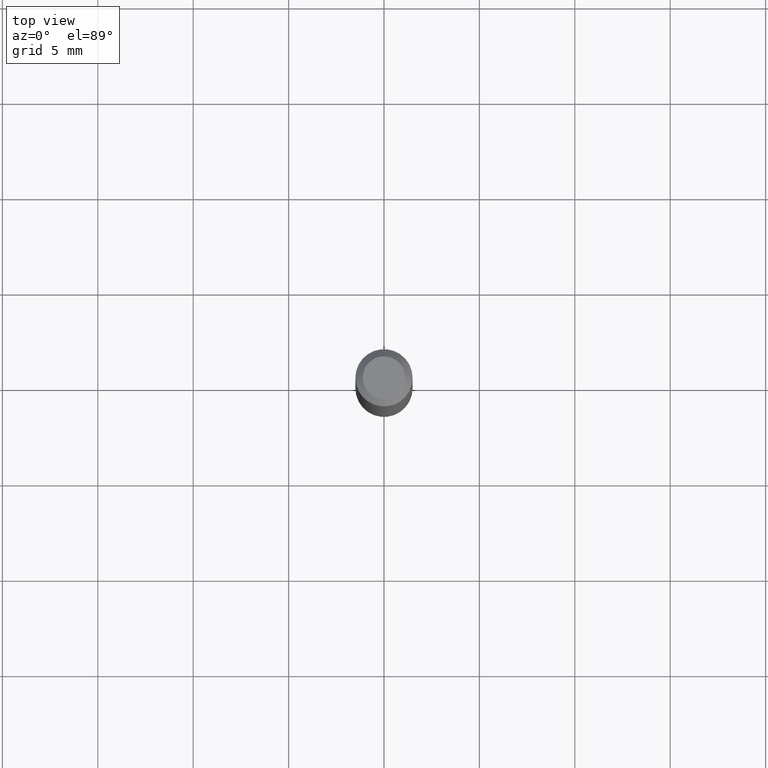
[diagram: clean part render]
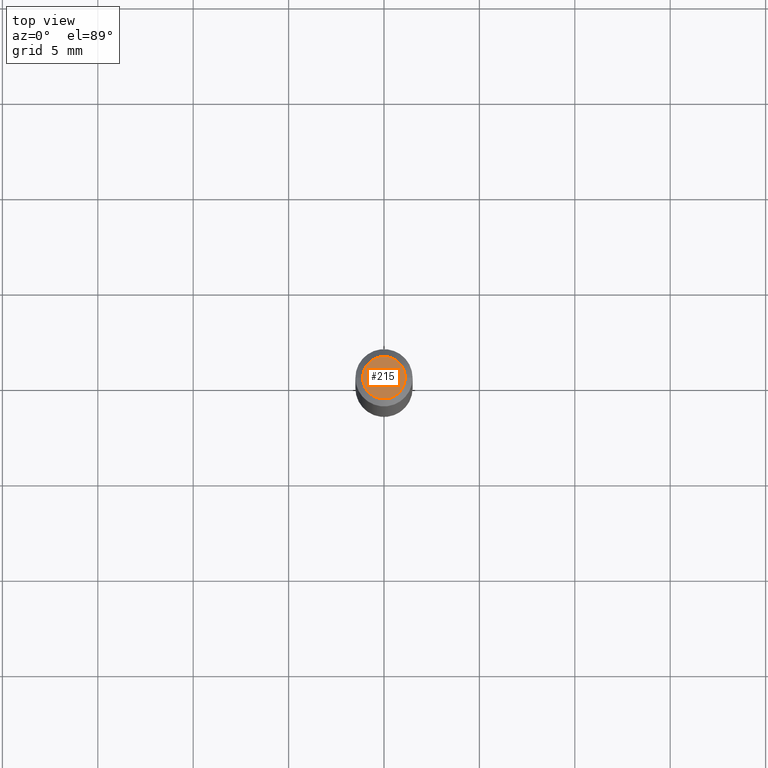
[diagram: same view with one face highlighted and labeled with its STEP entity id]
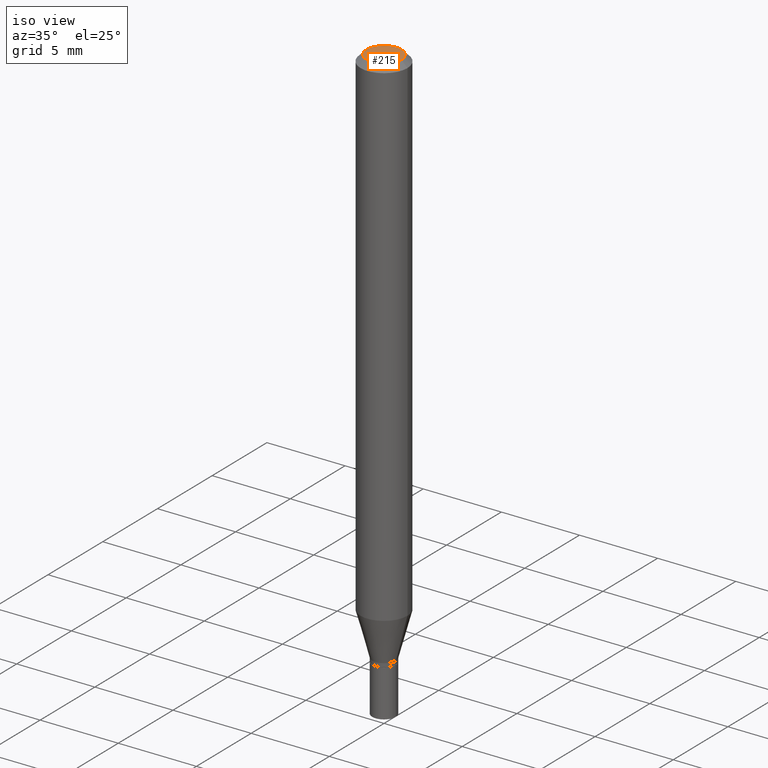
[diagram: same view with one face highlighted and labeled with its STEP entity id]
A machine part, top view. The second image highlights one B-rep face of the part: STEP entity #215.
A second angle (iso view) of the same face is appended — the face is thin or edge-on in the first view.
In plain terms, the highlighted planar face has unit normal (0, -0, -1).
Its self-contained STEP definition (entity closure, byte-faithful):
#17 = EDGE_CURVE ( 'NONE', #244, #338, #306, .T. ) ;
#20 = EDGE_CURVE ( 'NONE', #338, #244, #374, .T. ) ;
#47 = CARTESIAN_POINT ( 'NONE',  ( -8.641182519006289553E-45, 1.233731848647591164E-30, 3.533548453838711334E-16 ) ) ;
#54 = CARTESIAN_POINT ( 'NONE',  ( -0.04404999999999999888, 3.337856159934041534E-16, 3.533548453838689148E-16 ) ) ;
#74 = ORIENTED_EDGE ( 'NONE', *, *, #17, .T. ) ;
#90 = AXIS2_PLACEMENT_3D ( 'NONE', #47, #368, #269 ) ;
#127 = DIRECTION ( 'NONE',  ( 2.438088387897960049E-29, -3.491481338843145188E-15, -1.000000000000000000 ) ) ;
#164 = CARTESIAN_POINT ( 'NONE',  ( 0.04404999999999999888, -3.798447818264455642E-16, 3.533548453838735986E-16 ) ) ;
#196 = FACE_OUTER_BOUND ( 'NONE', #326, .T. ) ;
#215 = ADVANCED_FACE ( 'NONE', ( #196 ), #226, .F. ) ;
#226 = PLANE ( 'NONE',  #254 ) ;
#244 = VERTEX_POINT ( 'NONE', #164 ) ;
#254 = AXIS2_PLACEMENT_3D ( 'NONE', #258, #127, #367 ) ;
#258 = CARTESIAN_POINT ( 'NONE',  ( 3.075995059520799729E-16, 0.04404999999999999888, 2.287766971589501637E-17 ) ) ;
#265 = ORIENTED_EDGE ( 'NONE', *, *, #20, .T. ) ;
#269 = DIRECTION ( 'NONE',  ( 1.000000000000000000, -6.982962677686265922E-15, 4.819687581474398999E-29 ) ) ;
#289 = DIRECTION ( 'NONE',  ( -2.445468806185136597E-29, 3.491481338843145583E-15, 1.000000000000000000 ) ) ;
#306 = CIRCLE ( 'NONE', #90, 0.04404999999999999888 ) ;
#326 = EDGE_LOOP ( 'NONE', ( #265, #74 ) ) ;
#338 = VERTEX_POINT ( 'NONE', #54 ) ;
#367 = DIRECTION ( 'NONE',  ( -1.000000000000000000, 6.982962677686265922E-15, -4.876176775795935793E-29 ) ) ;
#368 = DIRECTION ( 'NONE',  ( -2.445468806185136597E-29, 3.491481338843145583E-15, 1.000000000000000000 ) ) ;
#373 = DIRECTION ( 'NONE',  ( 1.000000000000000000, -6.982962677686265922E-15, 4.819687581474398999E-29 ) ) ;
#374 = CIRCLE ( 'NONE', #445, 0.04404999999999999888 ) ;
#397 = CARTESIAN_POINT ( 'NONE',  ( -8.641182519006289553E-45, 1.233731848647591164E-30, 3.533548453838711334E-16 ) ) ;
#445 = AXIS2_PLACEMENT_3D ( 'NONE', #397, #289, #373 ) ;